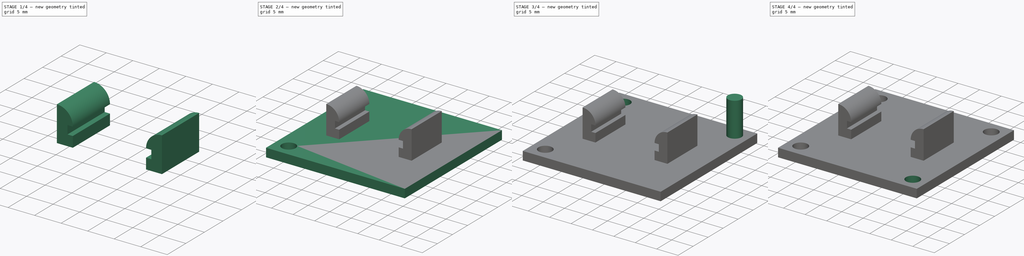
[diagram: build sequence overview — one tinted view per stage of 4, left to right]
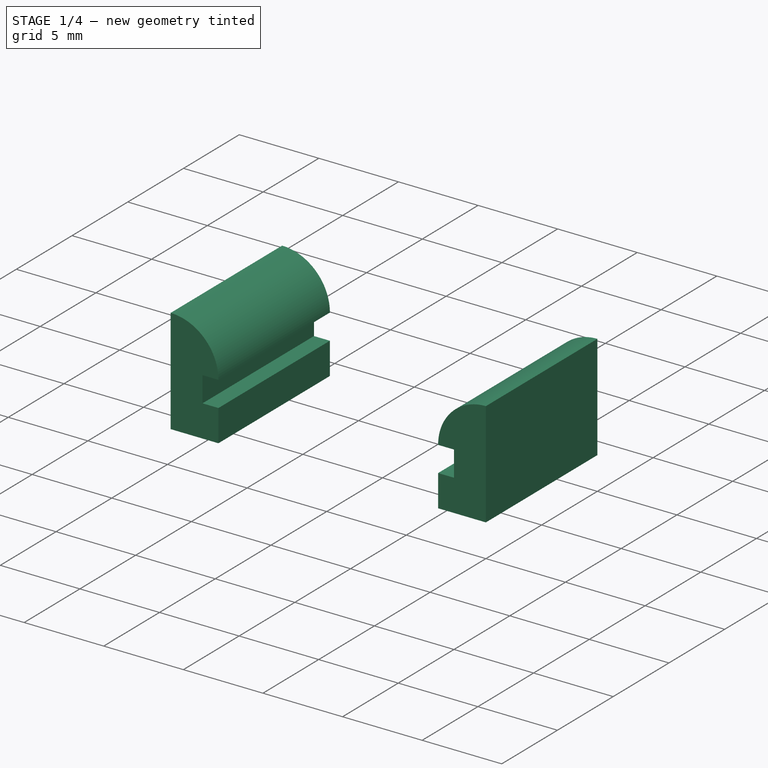
[diagram: stage 1 of 4 — iso view after this stage's code; geometry added in this stage tinted green]
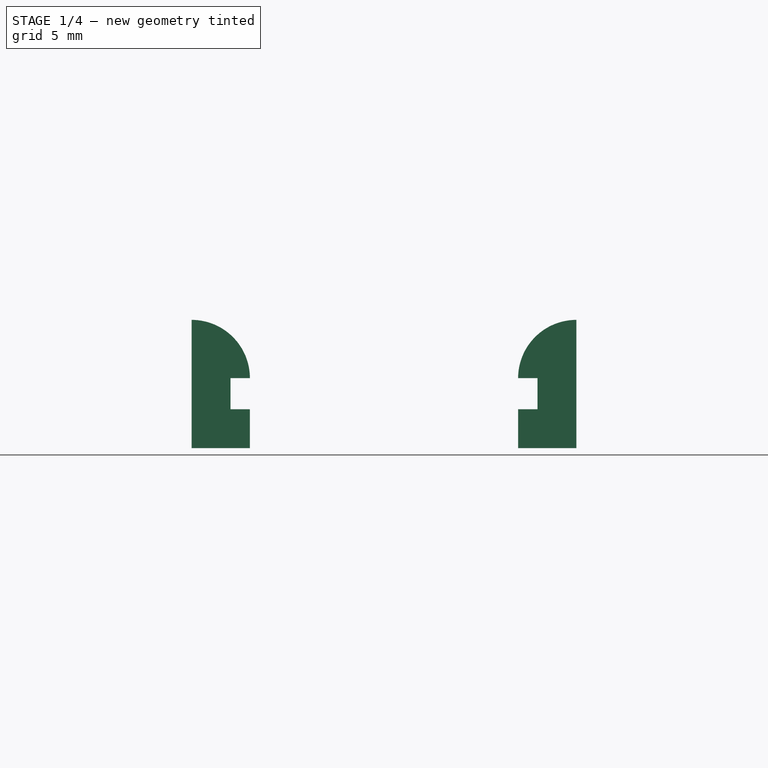
[diagram: stage 1 of 4 — front view after this stage's code; geometry added in this stage tinted green]
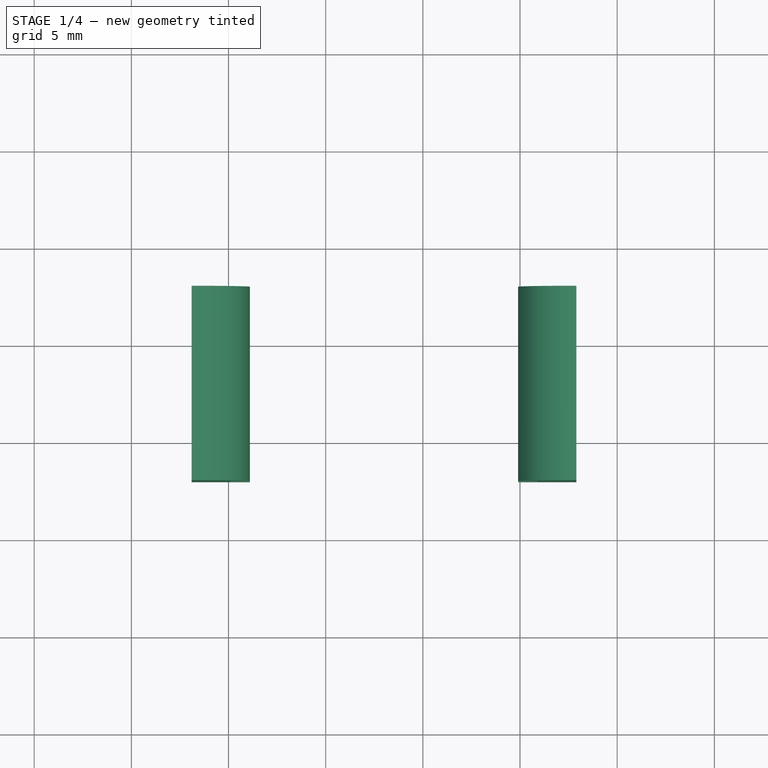
[diagram: stage 1 of 4 — top view after this stage's code; geometry added in this stage tinted green]
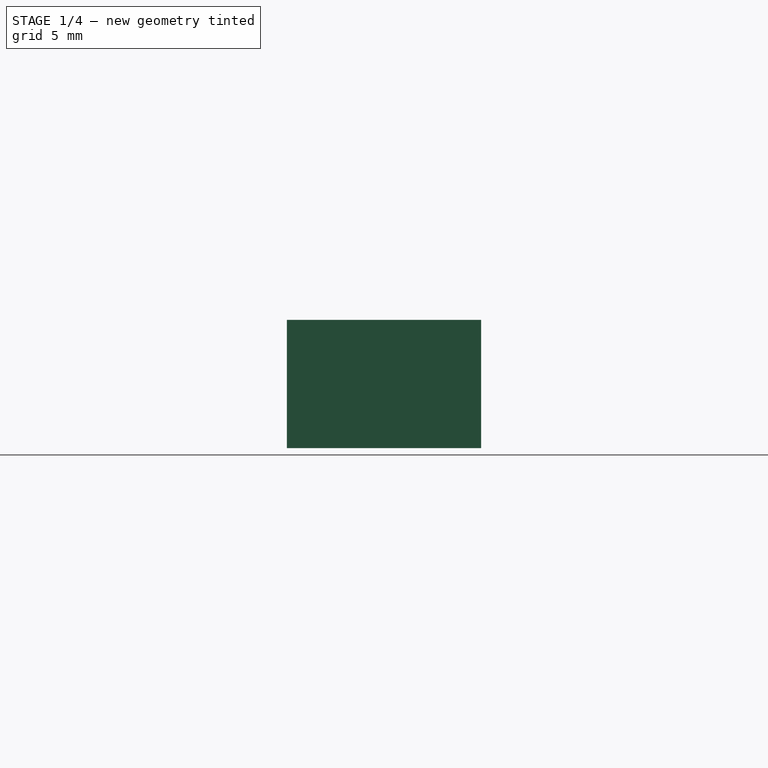
[diagram: stage 1 of 4 — right view after this stage's code; geometry added in this stage tinted green]
FCSTD DOCUMENT  (FreeCAD 1.0R39319 (Git))
Label: HBridgeMount
License: All rights reserved
LicenseURL: https://en.wikipedia.org/wiki/All_rights_reserved
objects: Part::Cylinder×4, Part::Cut×4, Sketcher::SketchObject×2, Part::Extrusion×2, Part::MultiFuse×2, Part::Mirroring×1, Part::Box×1
note: 18 computed .brp shape members not serialized (recipe doc carries the construction recipe); baked Part::Feature solids carry a one-line shape summary decoded from their .brp

FEATURE [Sketcher::SketchObject] Sketch
  ArcFitTolerance = 1e-06
  FullyConstrained = false
  MakeInternals = false
  Placement = pos=(0,0,0) rot=(1,0,0;1.5708rad)
  sketch-geometry (7):
    g0: LineSegment StartX=7.9 StartY=3.6 StartZ=0 EndX=6.9 EndY=3.6 EndZ=0
    g1: LineSegment StartX=9.9 StartY=6.6 StartZ=0 EndX=9.9 EndY=0 EndZ=0
    g2: LineSegment StartX=9.9 StartY=0 StartZ=0 EndX=6.9 EndY=0 EndZ=0
    g3: ArcOfCircle CenterX=9.9 CenterY=3.6 CenterZ=0 NormalX=0 NormalY=0 NormalZ=1 AngleXU=0 Radius=3 StartAngle=1.5708 EndAngle=3.14159
    g4: LineSegment StartX=7.9 StartY=3.6 StartZ=0 EndX=7.9 EndY=2 EndZ=0
    g5: LineSegment StartX=7.9 StartY=2 StartZ=0 EndX=6.9 EndY=2 EndZ=0
    g6: LineSegment StartX=6.9 StartY=2 StartZ=0 EndX=6.9 EndY=0 EndZ=0
  constraints (21):
    c: PointOnObject(g2,g-1)
    c: Horizontal(g0)
    c: Vertical(g1)
    c: Coincident(g2,g1)
    c: Horizontal(g2)
    c: Coincident(g3,g0)
    c: Coincident(g3,g1)
    c: Coincident(g4,g0)
    c: Vertical(g4)
    c: Coincident(g5,g4)
    c: Horizontal(g5)
    c: Coincident(g6,g5)
    c: Vertical(g6)
    c: Coincident(g2,g6)
    c: Vertical(g5,g0)
    c: DistanceY(g4,g4) = 1.6
    c: DistanceX(g5,g5) = 1
    c: DistanceY(g6,g6) = 2
    c: Distance(g4,g1) = 2
    c: Vertical(g3,g1)
    c: Distance(g-2,g4) = 7.9
FEATURE [Part::Extrusion] Extrude
  Base = -> Sketch
  Dir = (0,-1,2e-16)
  DirMode = 2
  FaceMakerClass = Part::FaceMakerBullseye
  FaceMakerMode = 3
  LengthFwd = 10
  LengthRev = 0
  Solid = true
  Symmetric = false
FEATURE [Part::Mirroring] Part__Mirroring  label="Extrude (Mirror #1)"
  Base = (0,0,0)
  Normal = (1,0,0)
  Source = -> Extrude
FEATURE [Sketcher::SketchObject] Sketch002
  ArcFitTolerance = 1e-06
  FullyConstrained = false
  MakeInternals = false
  Placement = pos=(0,0,0) rot=(1,0,0;1.5708rad)
  sketch-geometry (7):
    g0: LineSegment StartX=7.9 StartY=3.6 StartZ=0 EndX=6.9 EndY=3.6 EndZ=0
    g1: LineSegment StartX=9.9 StartY=6.6 StartZ=0 EndX=9.9 EndY=0 EndZ=0
    g2: LineSegment StartX=9.9 StartY=0 StartZ=0 EndX=6.9 EndY=0 EndZ=0
    g3: ArcOfCircle CenterX=9.9 CenterY=3.6 CenterZ=0 NormalX=0 NormalY=0 NormalZ=1 AngleXU=0 Radius=3 StartAngle=1.5708 EndAngle=3.14159
    g4: LineSegment StartX=7.9 StartY=3.6 StartZ=0 EndX=7.9 EndY=2 EndZ=0
    g5: LineSegment StartX=7.9 StartY=2 StartZ=0 EndX=6.9 EndY=2 EndZ=0
    g6: LineSegment StartX=6.9 StartY=2 StartZ=0 EndX=6.9 EndY=0 EndZ=0
  constraints (21):
    c: PointOnObject(g2,g-1)
    c: Horizontal(g0)
    c: Vertical(g1)
    c: Coincident(g2,g1)
    c: Horizontal(g2)
    c: Coincident(g3,g0)
    c: Coincident(g3,g1)
    c: Coincident(g4,g0)
    c: Vertical(g4)
    c: Coincident(g5,g4)
    c: Horizontal(g5)
    c: Coincident(g6,g5)
    c: Vertical(g6)
    c: Coincident(g2,g6)
    c: Vertical(g5,g0)
    c: DistanceY(g4,g4) = 1.6
    c: DistanceX(g5,g5) = 1
    c: DistanceY(g6,g6) = 2
    c: Distance(g4,g1) = 2
    c: Vertical(g3,g1)
    c: Distance(g-2,g4) = 7.9
FEATURE [Part::Extrusion] Extrude002
  Base = -> Sketch002
  Dir = (0,-1,2e-16)
  DirMode = 2
  FaceMakerClass = Part::FaceMakerBullseye
  FaceMakerMode = 3
  LengthFwd = 10
  LengthRev = 0
  Solid = true
  Symmetric = false
FEATURE [Part::MultiFuse] Fusion  label="H Bridge Mount"
  Placement = pos=(13,18,2) rot=(0,0,1;0rad)
  Shapes = -> [Extrude002,Part__Mirroring]
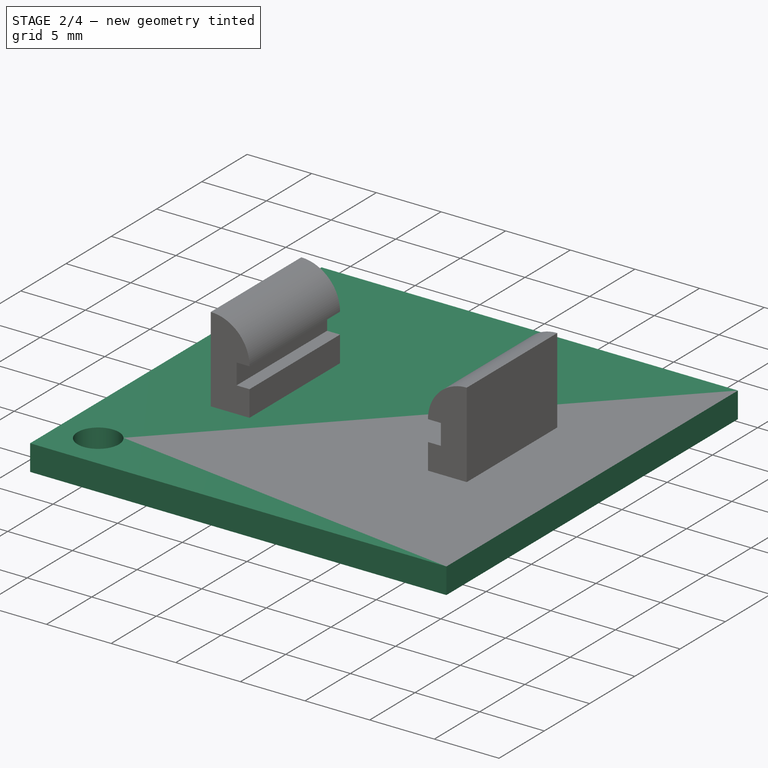
[diagram: stage 2 of 4 — iso view after this stage's code; geometry added in this stage tinted green]
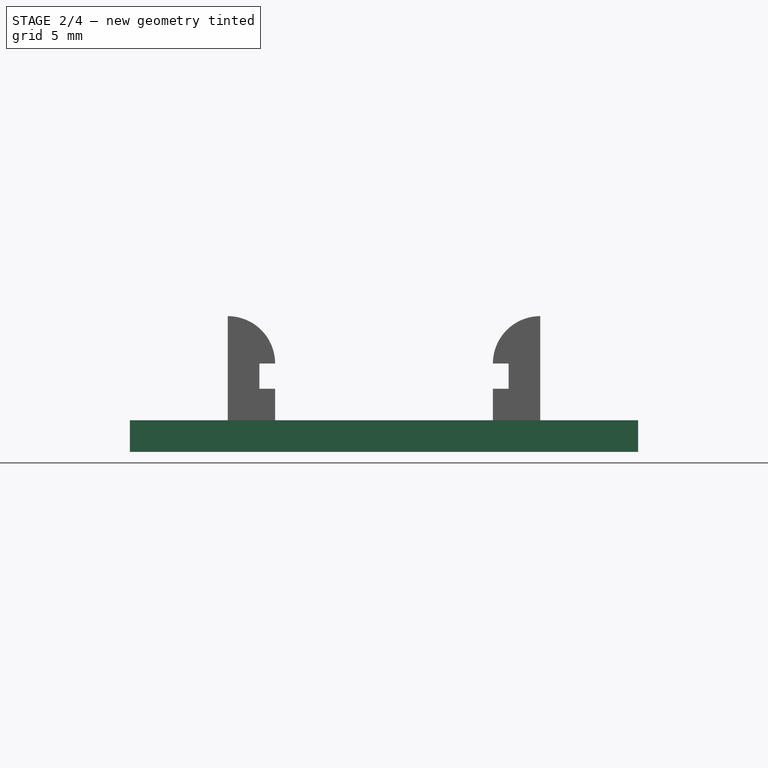
[diagram: stage 2 of 4 — front view after this stage's code; geometry added in this stage tinted green]
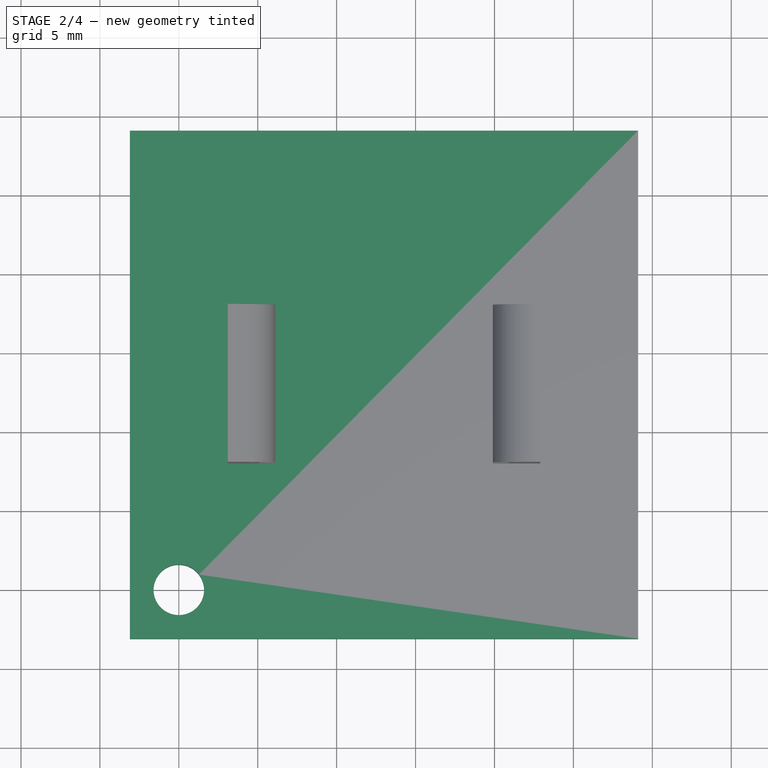
[diagram: stage 2 of 4 — top view after this stage's code; geometry added in this stage tinted green]
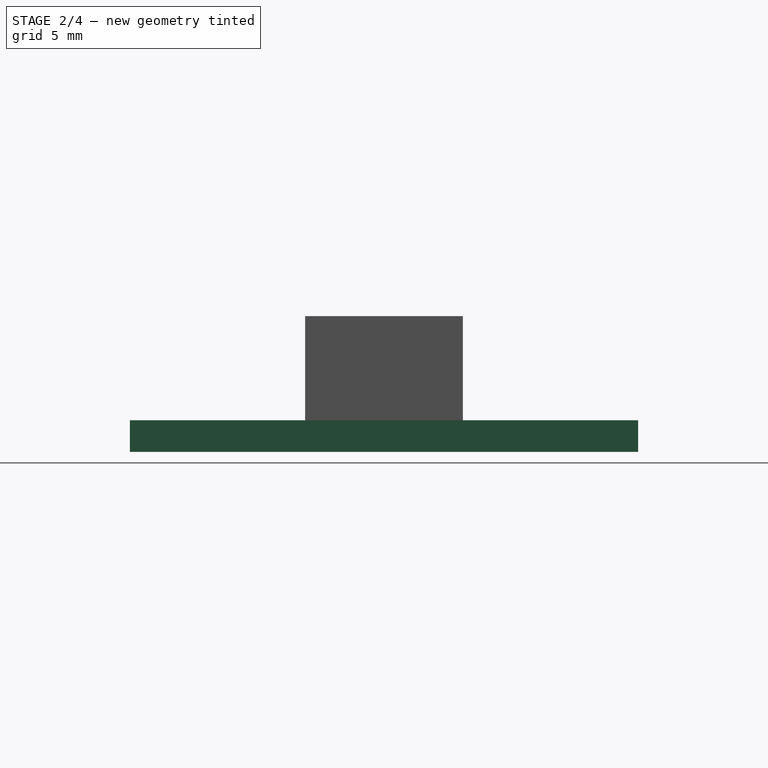
[diagram: stage 2 of 4 — right view after this stage's code; geometry added in this stage tinted green]
FEATURE [Part::Box] Box  label="Base"
  AttacherType = Attacher::AttachEngine3D
  Height = 2
  Length = 32.2
  Placement = pos=(-3.1,-3.1,0) rot=(0,0,1;0rad)
  Width = 32.2
FEATURE [Part::Cylinder] Cylinder013  label="Mount Point000"
  Angle = 360
  AttacherType = Attacher::AttachEngine3D
  FirstAngle = 0
  Height = 10
  Radius = 1.6
  SecondAngle = 0
FEATURE [Part::Cut] Cut
  Base = -> Box
  Tool = -> Cylinder013
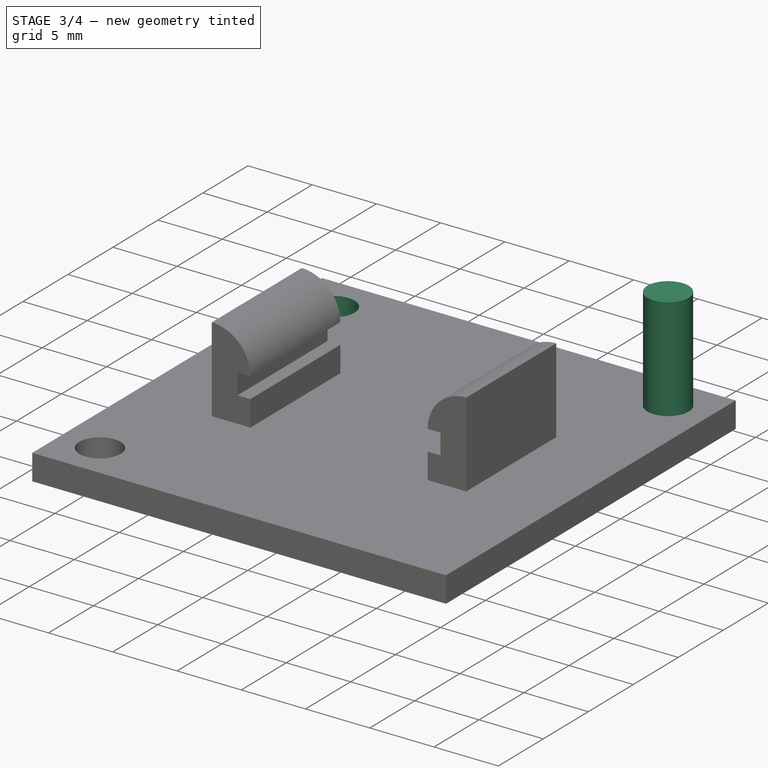
[diagram: stage 3 of 4 — iso view after this stage's code; geometry added in this stage tinted green]
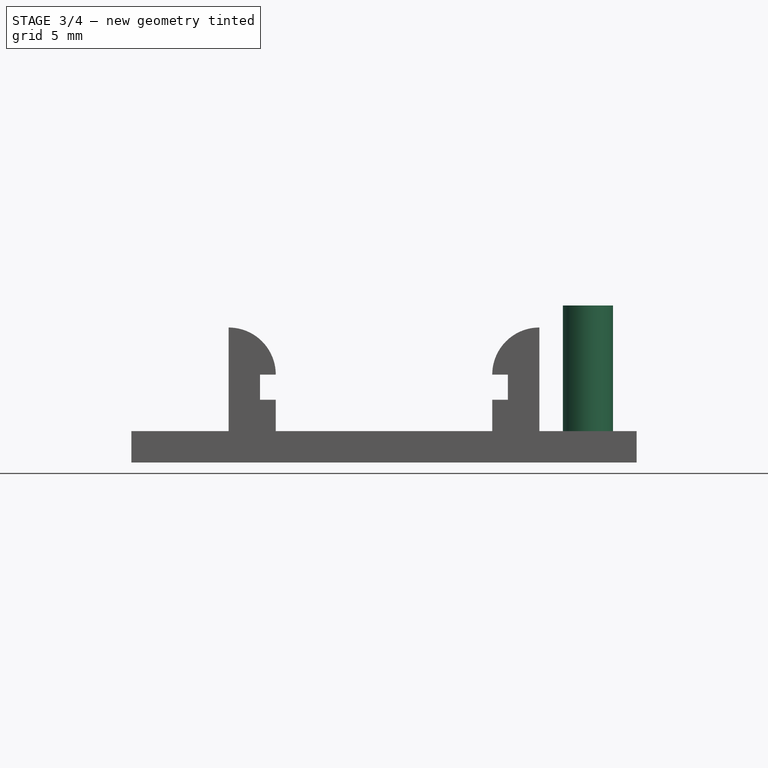
[diagram: stage 3 of 4 — front view after this stage's code; geometry added in this stage tinted green]
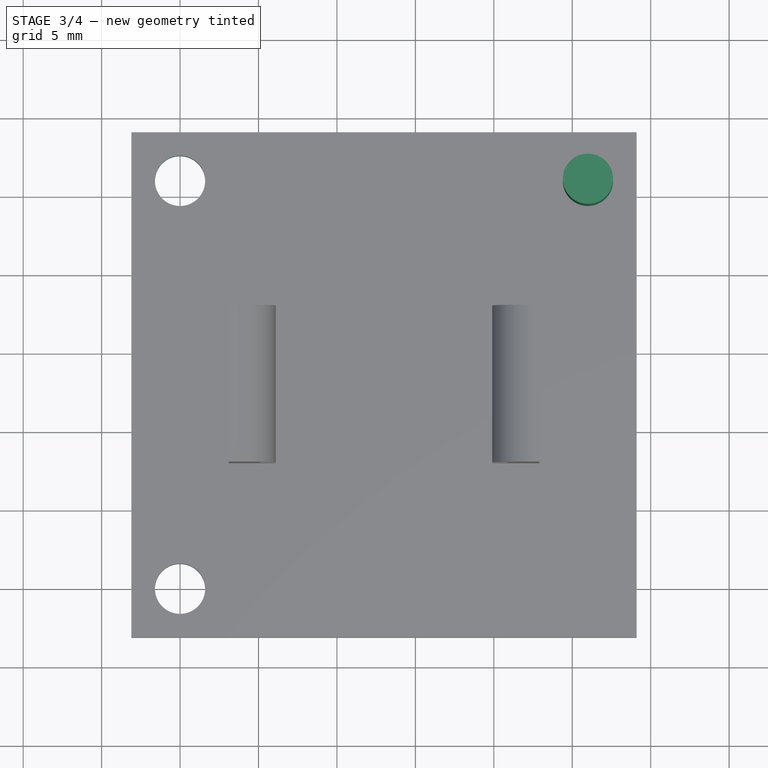
[diagram: stage 3 of 4 — top view after this stage's code; geometry added in this stage tinted green]
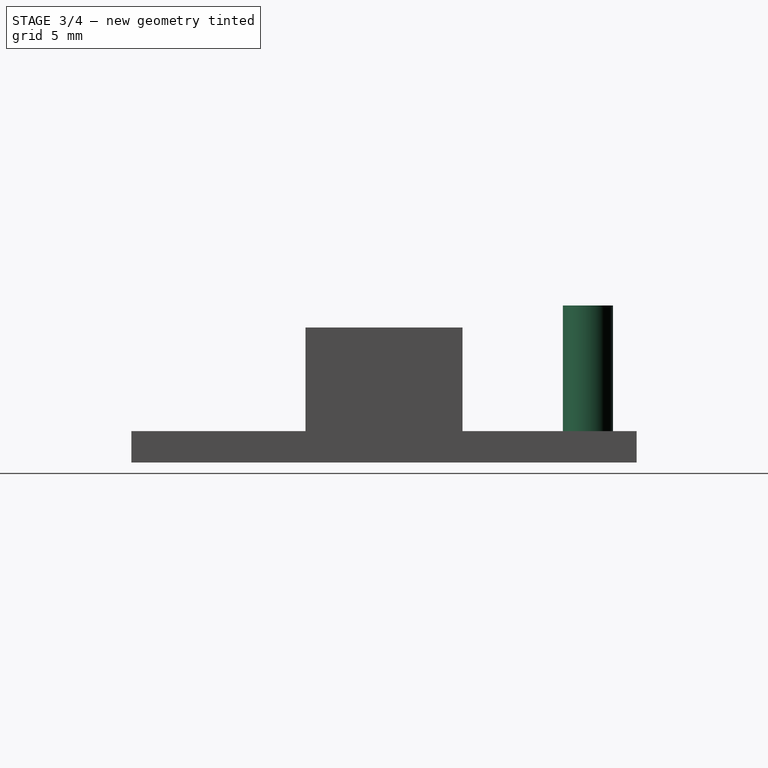
[diagram: stage 3 of 4 — right view after this stage's code; geometry added in this stage tinted green]
FEATURE [Part::Cylinder] Cylinder014  label="Mount Point001"
  Angle = 360
  AttacherType = Attacher::AttachEngine3D
  FirstAngle = 0
  Height = 10
  Placement = pos=(0,26,0) rot=(0,0,1;0rad)
  Radius = 1.6
  SecondAngle = 0
FEATURE [Part::Cylinder] Cylinder015  label="Mount Point002"
  Angle = 360
  AttacherType = Attacher::AttachEngine3D
  FirstAngle = 0
  Height = 10
  Placement = pos=(26,26,0) rot=(0,0,1;0rad)
  Radius = 1.6
  SecondAngle = 0
FEATURE [Part::Cut] Cut001
  Base = -> Cut
  Tool = -> Cylinder014
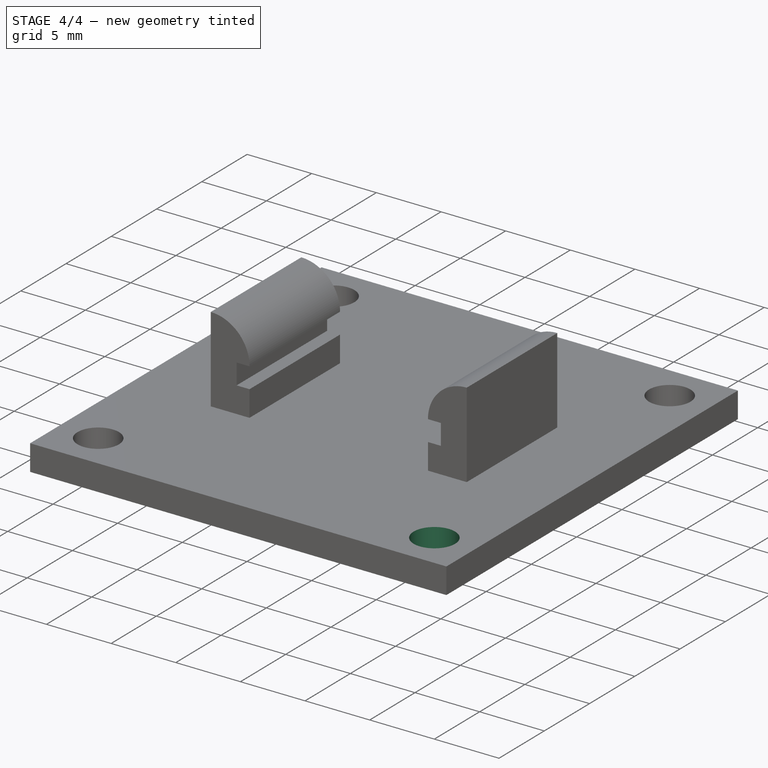
[diagram: stage 4 of 4 — iso view after this stage's code; geometry added in this stage tinted green]
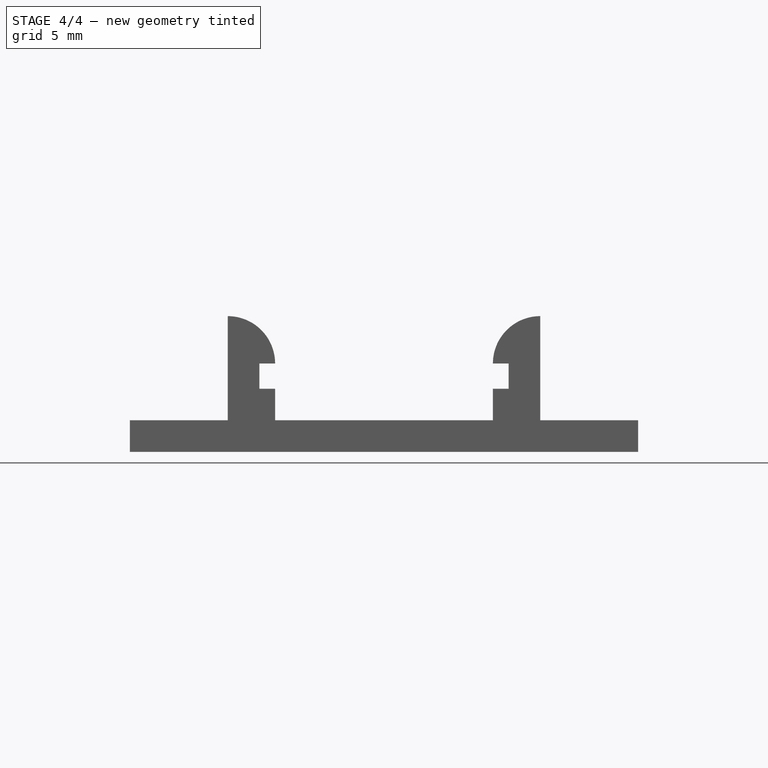
[diagram: stage 4 of 4 — front view after this stage's code; geometry added in this stage tinted green]
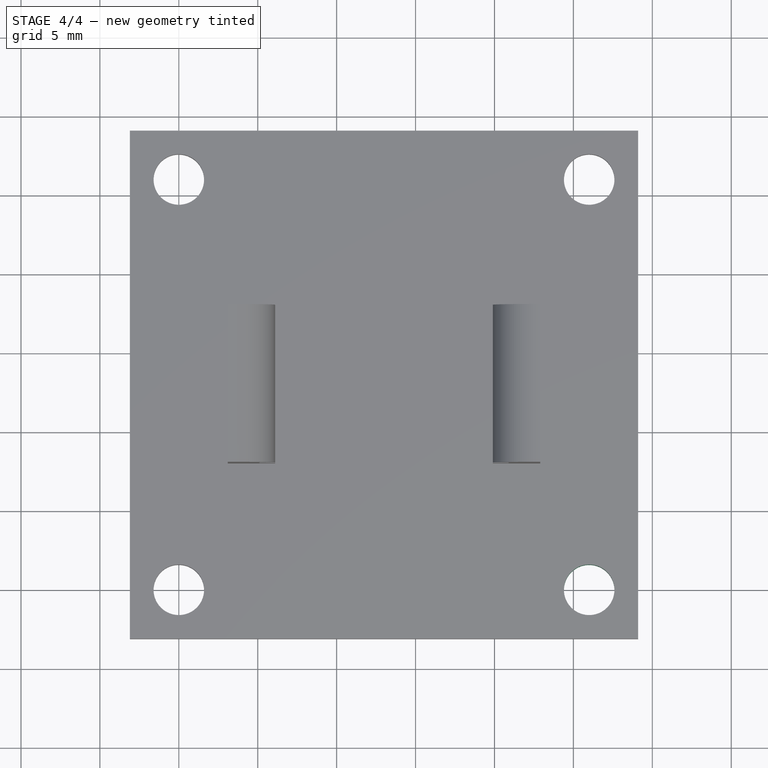
[diagram: stage 4 of 4 — top view after this stage's code; geometry added in this stage tinted green]
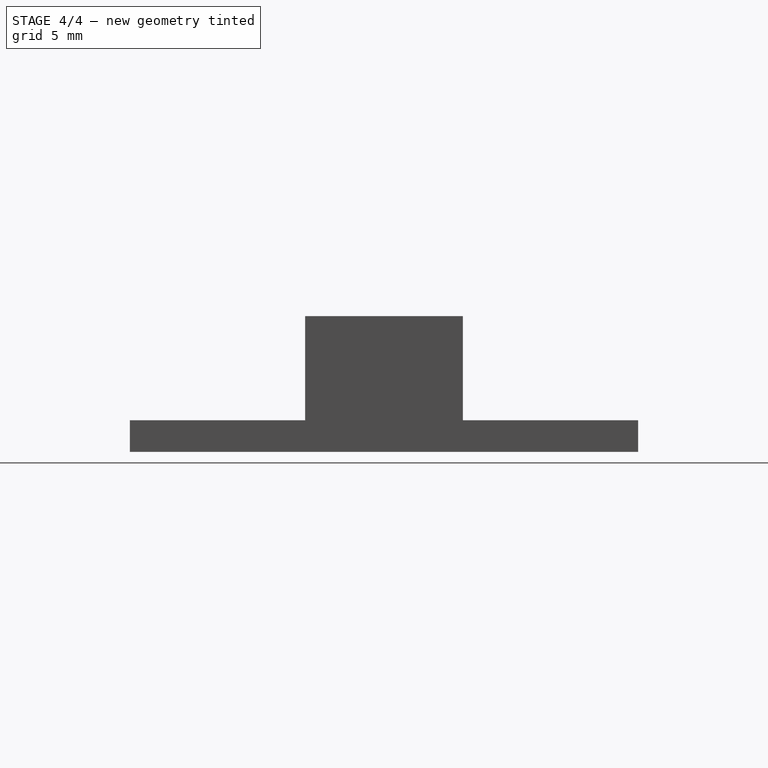
[diagram: stage 4 of 4 — right view after this stage's code; geometry added in this stage tinted green]
FEATURE [Part::Cylinder] Cylinder016  label="Mount Point003"
  Angle = 360
  AttacherType = Attacher::AttachEngine3D
  FirstAngle = 0
  Height = 10
  Placement = pos=(26,0,0) rot=(0,0,1;0rad)
  Radius = 1.6
  SecondAngle = 0
FEATURE [Part::Cut] Cut002
  Base = -> Cut001
  Tool = -> Cylinder015
FEATURE [Part::Cut] Cut003  label="Module Base"
  Base = -> Cut002
  Tool = -> Cylinder016
FEATURE [Part::MultiFuse] Fusion001
  Shapes = -> [Cut003,Fusion]
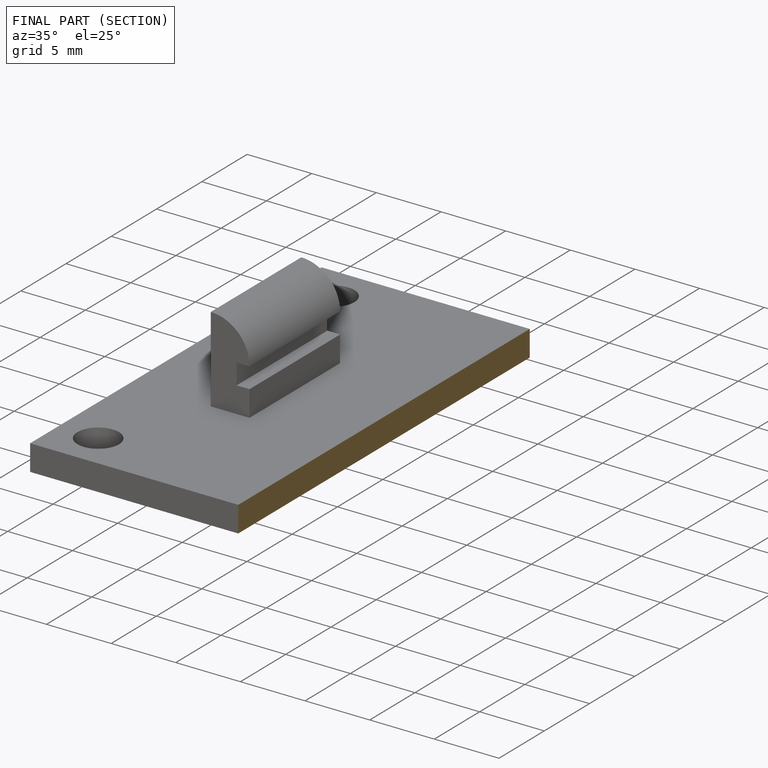
[diagram: finished part — half-section view (interior)]
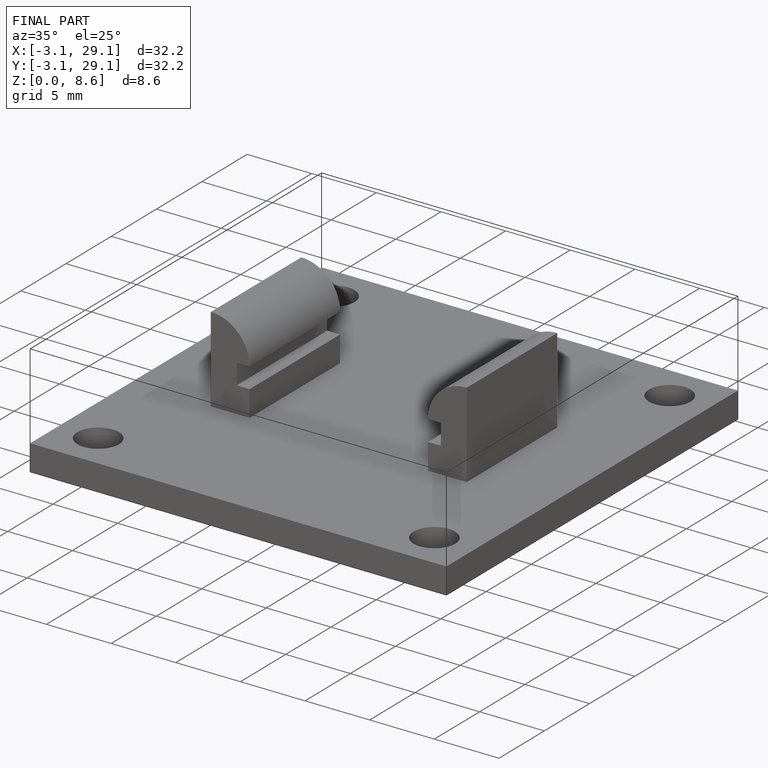
[diagram: finished part — iso view with bounding-box wireframe]
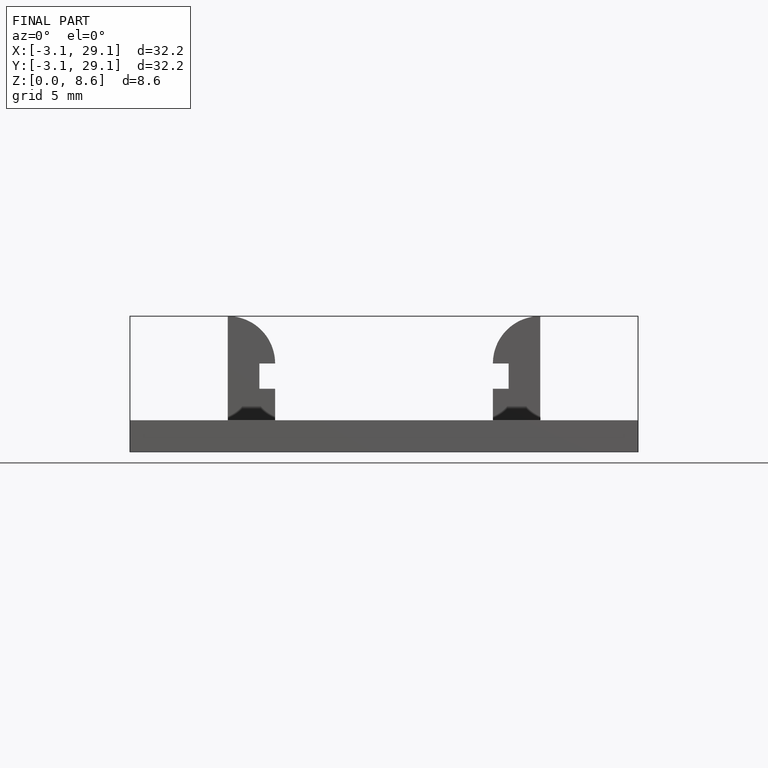
[diagram: finished part — front view with bounding-box wireframe]
